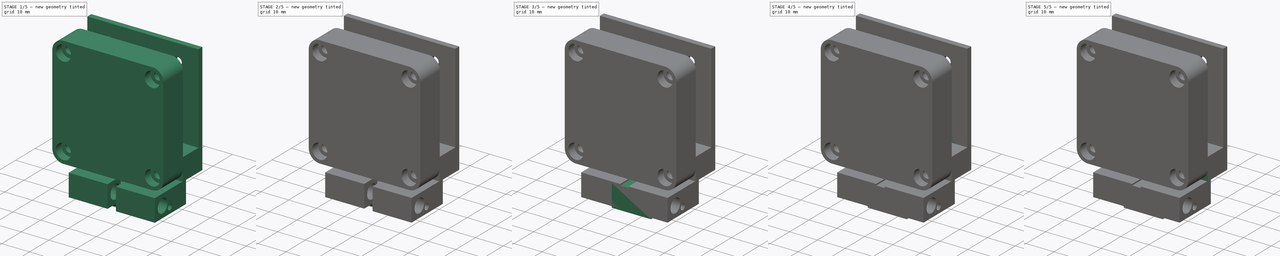
[diagram: build sequence overview — one tinted view per stage of 5, left to right]
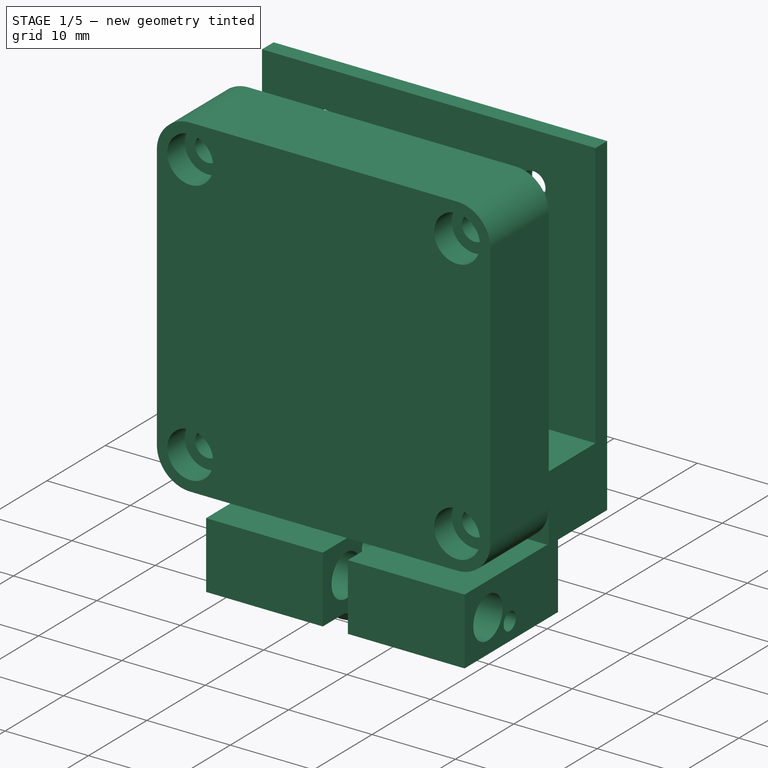
[diagram: stage 1 of 5 — iso view after this stage's code; geometry added in this stage tinted green]
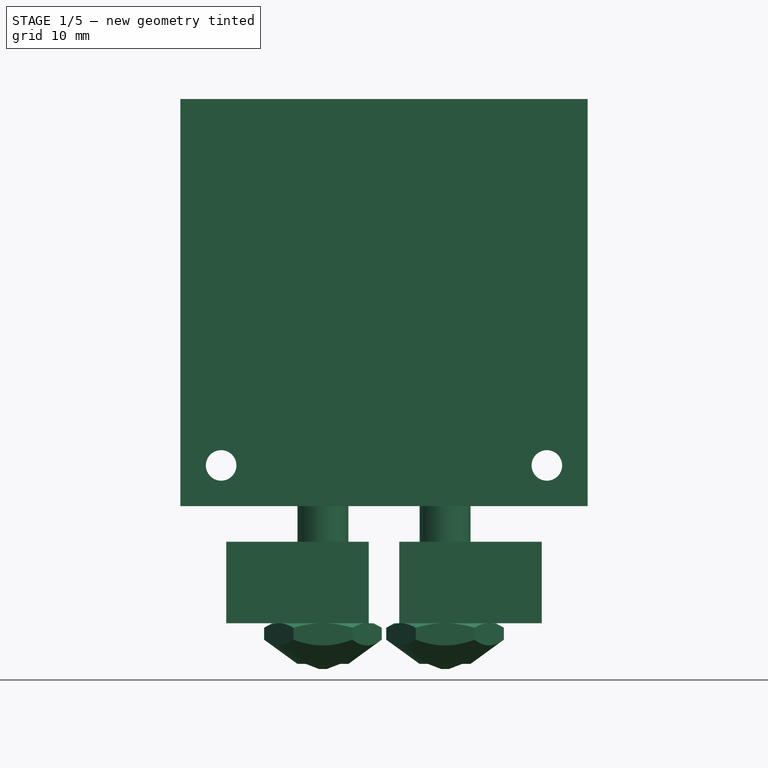
[diagram: stage 1 of 5 — front view after this stage's code; geometry added in this stage tinted green]
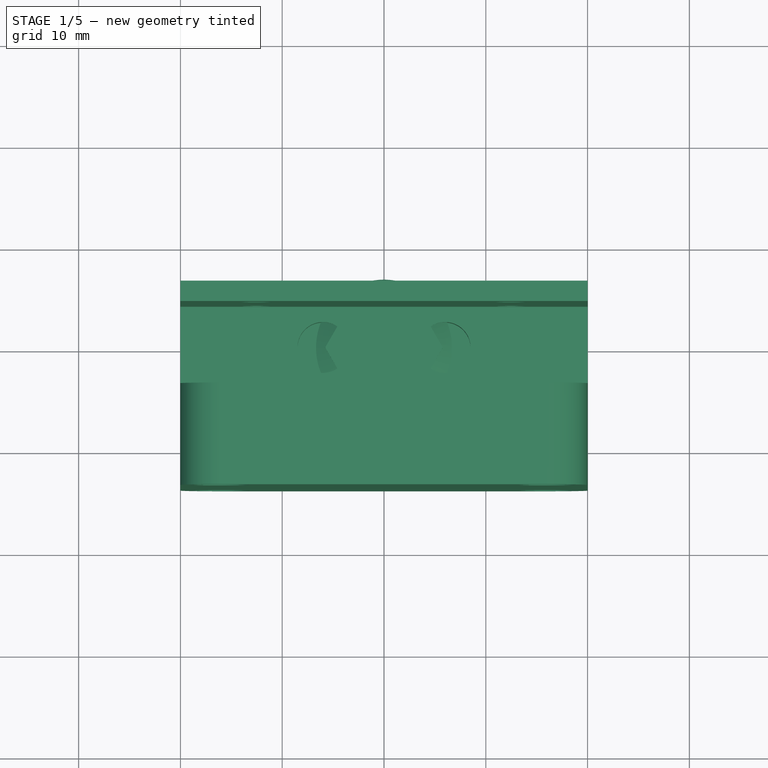
[diagram: stage 1 of 5 — top view after this stage's code; geometry added in this stage tinted green]
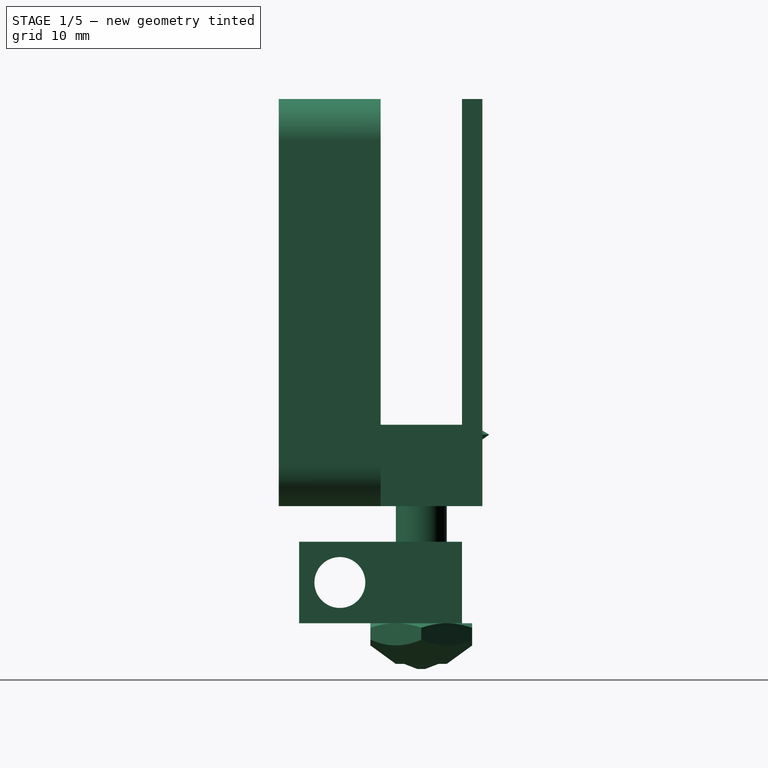
[diagram: stage 1 of 5 — right view after this stage's code; geometry added in this stage tinted green]
FCSTD DOCUMENT  (FreeCAD 0.14R3692 (Git))
Label: hotend-dual
License: CC-BY 3.0
LicenseURL: http://creativecommons.org/licenses/by/3.0/
objects: Part::Feature×9, Sketcher::SketchObject×8, PartDesign::Pocket×5, Part::Box×3, PartDesign::Revolution×2, Part::Cylinder×1, Part::Cut×1, PartDesign::Pad×1, Part::MultiCommon×1, Part::MultiFuse×1
note: 40 computed .brp shape members not serialized (recipe doc carries the construction recipe); baked Part::Feature solids carry a one-line shape summary decoded from their .brp

FEATURE [Part::Feature] Cut001  label="nozzle-right"
  Placement = pos=(6,0,-20) rot=(0,0,1;0rad)
  shape: bbox 5 x 5 x 20 mm, 4 faces (baked)
FEATURE [Sketcher::SketchObject] Sketch007  label="tapered-nut-section-sketch"
  Placement = pos=(0,0,0) rot=(1,0,0;1.5708rad)
  sketch-geometry (4):
    g0: LineSegment StartX=-2.5 StartY=0 StartZ=0 EndX=-6.67471 EndY=3.03311 EndZ=0
    g1: LineSegment StartX=-6.67471 StartY=3.03311 StartZ=0 EndX=-5 EndY=4 EndZ=0
    g2: LineSegment StartX=-5 StartY=4 StartZ=0 EndX=-2.5 EndY=4 EndZ=0
    g3: LineSegment StartX=-2.5 StartY=4 StartZ=0 EndX=-2.5 EndY=0 EndZ=0
  constraints (12):
    c: Coincident(g0,g1)
    c: Coincident(g1,g2)
    c: Coincident(g2,g3)
    c: Coincident(g3,g0)
    c: Vertical(g3)
    c: Horizontal(g2)
    c: PointOnObject(g0,g-1)
    c: DistanceX(g-1,g0) = -2.5
    c: DistanceY(g3) = -4
    c: DistanceX(g-1,g1) = -5
    c: Angle(g1) = 0.523599
    c: Angle(g-2,g0) = 0.942478
FEATURE [PartDesign::Revolution] Revolution001  label="tapered-nut-section-revolution"
  Angle = 360
  Axis = (0,0,1)
  Base = (0,0,0)
  Placement = pos=(0,0,0) rot=(1,0,0;1.5708rad)
  ReferenceAxis = -> Sketch007 [V_Axis]
  Sketch = -> Sketch007
FEATURE [Sketcher::SketchObject] Sketch008  label="tapered-nut-prism-sketch"
  sketch-geometry (7):
    g0: LineSegment StartX=-2.88675 StartY=5 StartZ=0 EndX=-5.7735 EndY=0 EndZ=0
    g1: LineSegment StartX=-5.7735 StartY=0 StartZ=0 EndX=-2.88675 EndY=-5 EndZ=0
    g2: LineSegment StartX=-2.88675 StartY=-5 StartZ=0 EndX=2.88675 EndY=-5 EndZ=0
    g3: LineSegment StartX=2.88675 StartY=-5 StartZ=0 EndX=5.7735 EndY=0 EndZ=0
    g4: LineSegment StartX=5.7735 StartY=0 StartZ=0 EndX=2.88675 EndY=5 EndZ=0
    g5: LineSegment StartX=2.88675 StartY=5 StartZ=0 EndX=-2.88675 EndY=5 EndZ=0
    g6: Circle [constr] CenterX=0 CenterY=0 CenterZ=0 NormalX=0 NormalY=0 NormalZ=1 Radius=5.7735
  constraints (20):
    c: Coincident(g0,g1)
    c: Coincident(g1,g2)
    c: Coincident(g2,g3)
    c: Coincident(g3,g4)
    c: Coincident(g4,g5)
    c: Coincident(g5,g0)
    c: Equal(g5,g2)
    c: Equal(g2,g1)
    c: Equal(g1,g3)
    c: Equal(g3,g4)
    c: Equal(g4,g0)
    c: Coincident(g6,g-1)
    c: PointOnObject(g0,g6)
    c: PointOnObject(g4,g6)
    c: PointOnObject(g3,g6)
    c: PointOnObject(g2,g6)
    c: PointOnObject(g1,g6)
    c: PointOnObject(g0,g6)
    c: Horizontal(g2)
    c: DistanceY(g1,g0) = 10
FEATURE [PartDesign::Pad] Pad  label="tapered-nut-prism-pad"
  Length = 4
  Length2 = 100
  Sketch = -> Sketch008
  Type = 0
FEATURE [Part::Feature] Common001  label="tapered-nut-right"
  Placement = pos=(6,0,-19.5) rot=(0,0,1;0rad)
  shape: bbox 11.55 x 11.55 x 4 mm, 16 faces (baked)
FEATURE [Part::Feature] Pocket001002003004  label="heater-block-left"
  Placement = pos=(-6,0,-23.5) rot=(0,1,0;3.14159rad)
  shape: bbox 14 x 16 x 8 mm, 9 faces (baked)
FEATURE [Part::Feature] Cut002  label="nozzle-left"
  Placement = pos=(-6,0,-20) rot=(0,0,1;0rad)
  shape: bbox 5 x 5 x 20 mm, 4 faces (baked)
FEATURE [Part::Feature] Common002  label="tapered-nut-left"
  Placement = pos=(-6,0,-19.5) rot=(0,0,1;0rad)
  shape: bbox 11.55 x 11.55 x 4 mm, 16 faces (baked)
FEATURE [Part::Feature] Pocket001002003005  label="heatsink"
  shape: bbox 40 x 2 x 40 mm, 12 faces (baked)
FEATURE [Part::Feature] Pocket001002003006  label="heatsink-block"
  shape: bbox 40 x 8 x 8 mm, 10 faces (baked)
FEATURE [Part::Feature] Part__Feature  label="fan-40x40x10"
  Placement = pos=(-20,-4,-4) rot=(1,0,0;1.5708rad)
  shape: bbox 40 x 10 x 40 mm, 22 faces (baked)
FEATURE [Part::MultiFuse] Fusion  label="hotend-dual"
  Shapes = -> [Pocket001002003004,Common002,Cut002,Common001,Cut001,Pocket001002003001,Pocket001002003005,Pocket001002003006,Part__Feature]
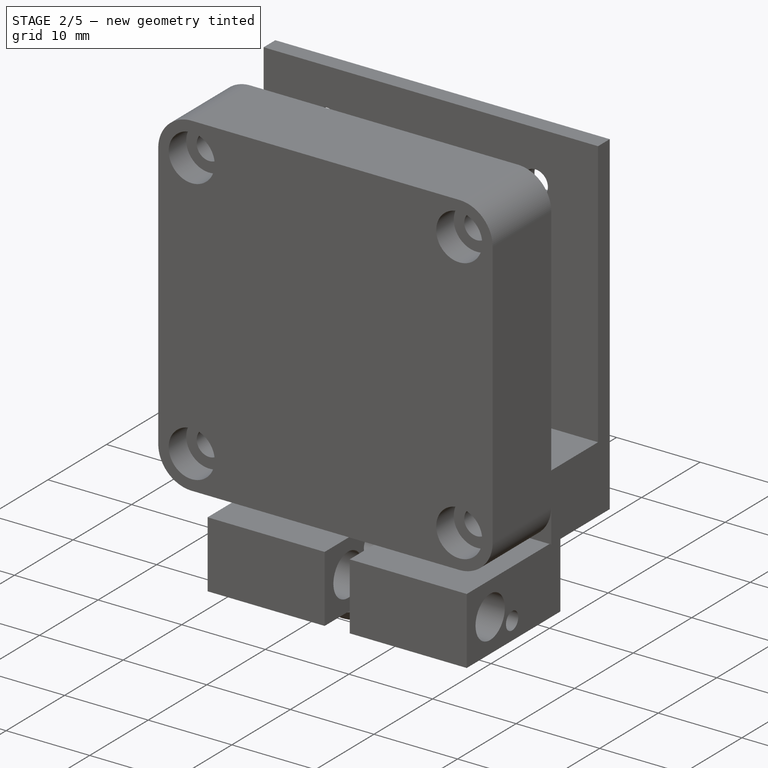
[diagram: stage 2 of 5 — iso view after this stage's code; geometry added in this stage tinted green]
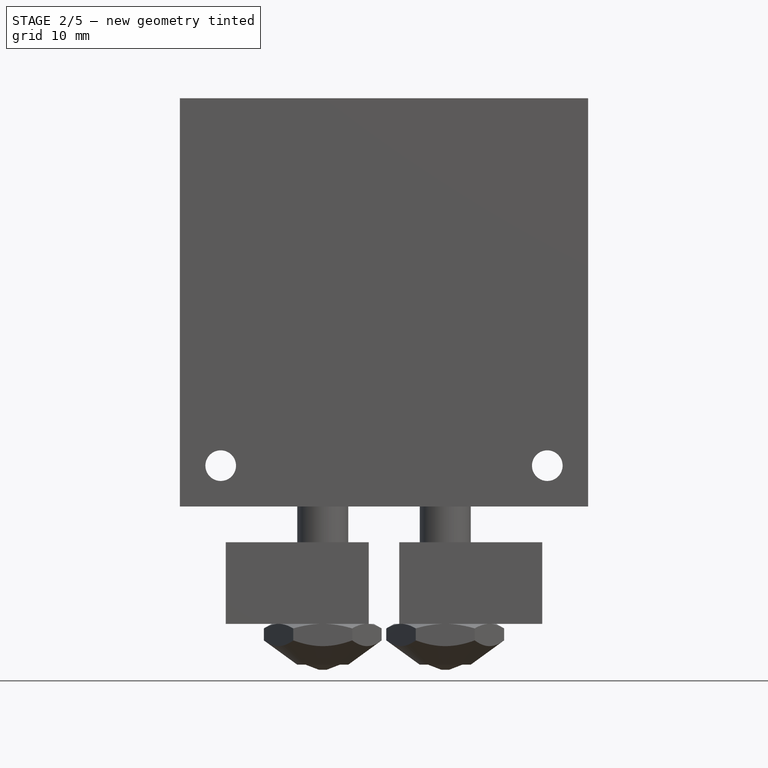
[diagram: stage 2 of 5 — front view after this stage's code; geometry added in this stage tinted green]
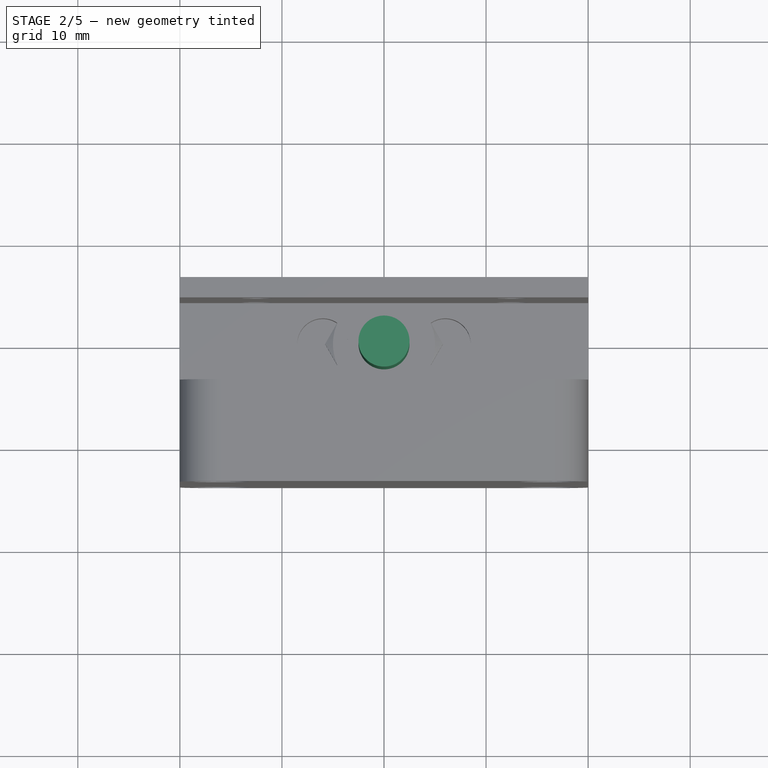
[diagram: stage 2 of 5 — top view after this stage's code; geometry added in this stage tinted green]
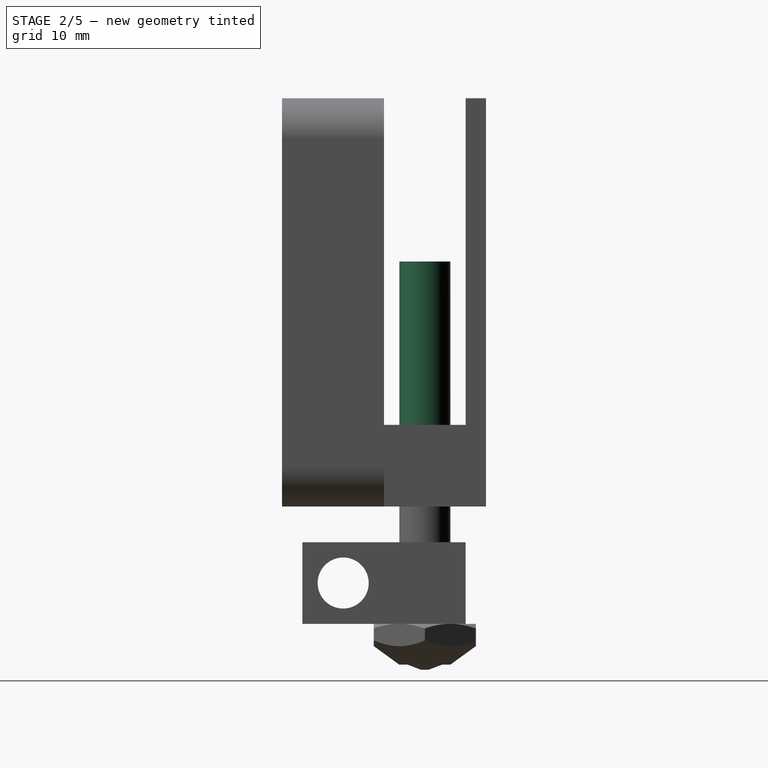
[diagram: stage 2 of 5 — right view after this stage's code; geometry added in this stage tinted green]
FEATURE [Part::Feature] Pocket001002003001  label="heater-block-right"
  Placement = pos=(6,0,0.5) rot=(0,0,1;0rad)
  shape: bbox 14 x 16 x 8 mm, 9 faces (baked)
FEATURE [Part::Cylinder] Cylinder  label="nozzle-cylinder"
  Angle = 360
  Height = 20
  Radius = 2.5
FEATURE [Sketcher::SketchObject] Sketch006  label="nozzle-sketch"
  Placement = pos=(0,0,0) rot=(1,0,0;1.5708rad)
  sketch-geometry (3):
    g0: LineSegment StartX=-0.375 StartY=0 StartZ=0 EndX=-2.5 EndY=0.815711 EndZ=0
    g1: LineSegment StartX=-2.5 StartY=0.815711 StartZ=0 EndX=-2.5 EndY=0 EndZ=0
    g2: LineSegment StartX=-2.5 StartY=0 StartZ=0 EndX=-0.375 EndY=0 EndZ=0
  constraints (9):
    c: Coincident(g0,g1)
    c: Coincident(g1,g2)
    c: Coincident(g2,g0)
    c: Horizontal(g2)
    c: Vertical(g1)
    c: Angle(g0,g2) = 0.366519
    c: DistanceX(g-1,g0) = -0.375
    c: DistanceX(g-1,g1) = -2.5
    c: PointOnObject(g0,g-1)
FEATURE [PartDesign::Revolution] Revolution  label="nozzle-revolution"
  Angle = 360
  Axis = (0,0,1)
  Base = (0,0,0)
  Placement = pos=(0,0,0) rot=(1,0,0;1.5708rad)
  ReferenceAxis = -> Sketch006 [V_Axis]
  Sketch = -> Sketch006
FEATURE [Part::MultiCommon] Common  label="tapered-nut-prism-section-common"
  Shapes = -> [Pad,Revolution001]
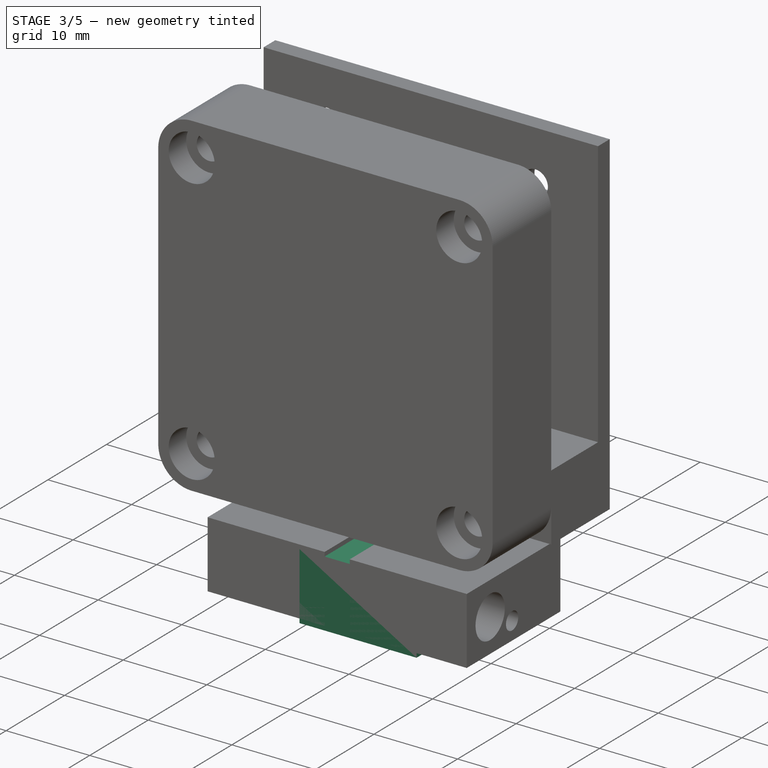
[diagram: stage 3 of 5 — iso view after this stage's code; geometry added in this stage tinted green]
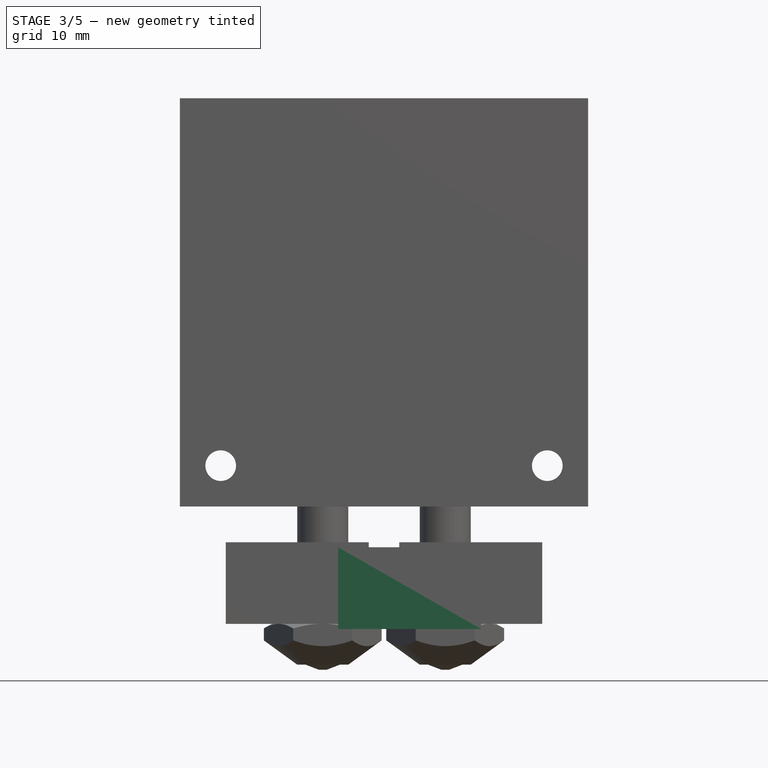
[diagram: stage 3 of 5 — front view after this stage's code; geometry added in this stage tinted green]
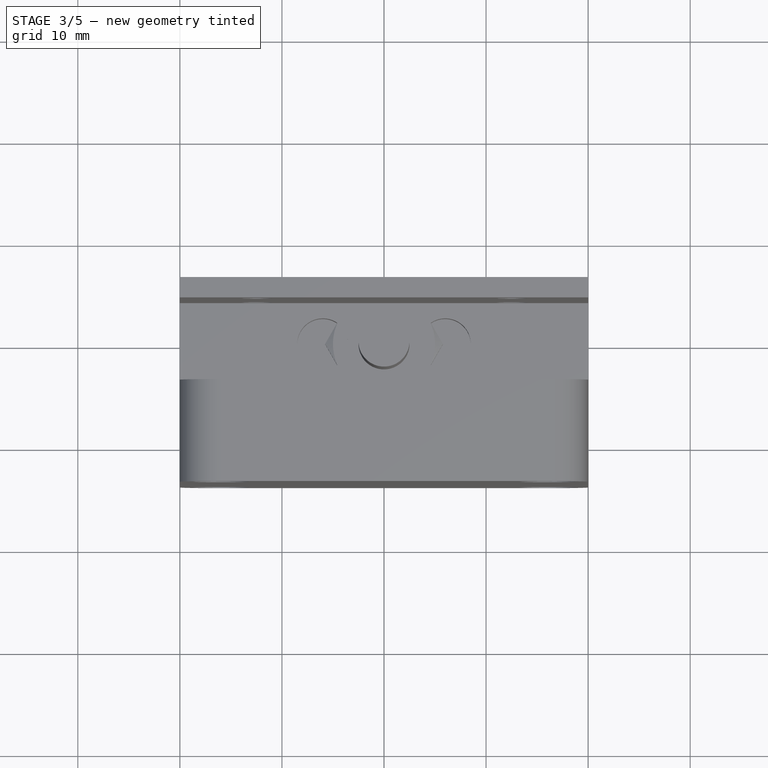
[diagram: stage 3 of 5 — top view after this stage's code; geometry added in this stage tinted green]
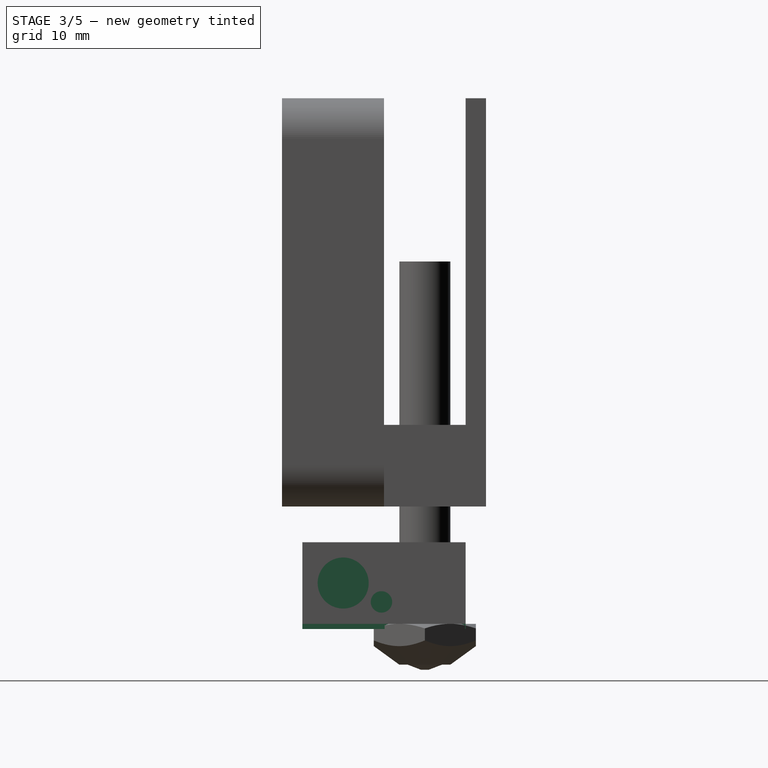
[diagram: stage 3 of 5 — right view after this stage's code; geometry added in this stage tinted green]
FEATURE [Part::Box] Box002  label="heater-block-cube"
  Height = 8
  Length = 14
  Placement = pos=(-4.5,-12,-16) rot=(0,0,1;0rad)
  Width = 16
FEATURE [Sketcher::SketchObject] Sketch003  label="heater-block-barrel-hole-sketch"
  Placement = pos=(-4.5,-12,-8) rot=(0,0,1;0rad)
  Support = -> Box002 [Face6]
  sketch-geometry (1):
    g0: Circle CenterX=4.5 CenterY=12 CenterZ=0 NormalX=0 NormalY=0 NormalZ=1 Radius=2.5
  constraints (3):
    c: DistanceY(g-1,g0) = 12
    c: DistanceX(g-1,g0) = 4.5
    c: Radius(g0) = 2.5
FEATURE [PartDesign::Pocket] Pocket001002002  label="heater-block-barrel-hole-pocket"
  Length = 8
  Placement = pos=(-4.5,-12,-16) rot=(0,0,1;0rad)
  Sketch = -> Sketch003
  Type = 0
FEATURE [Part::Cut] Cut  label="nozzle-cut"
  Base = -> Cylinder
  Tool = -> Revolution
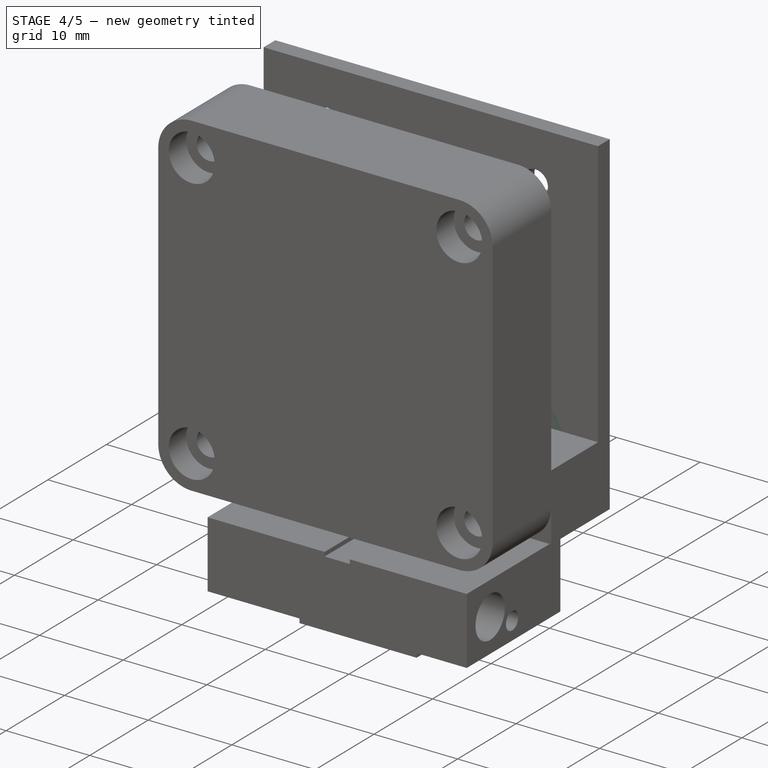
[diagram: stage 4 of 5 — iso view after this stage's code; geometry added in this stage tinted green]
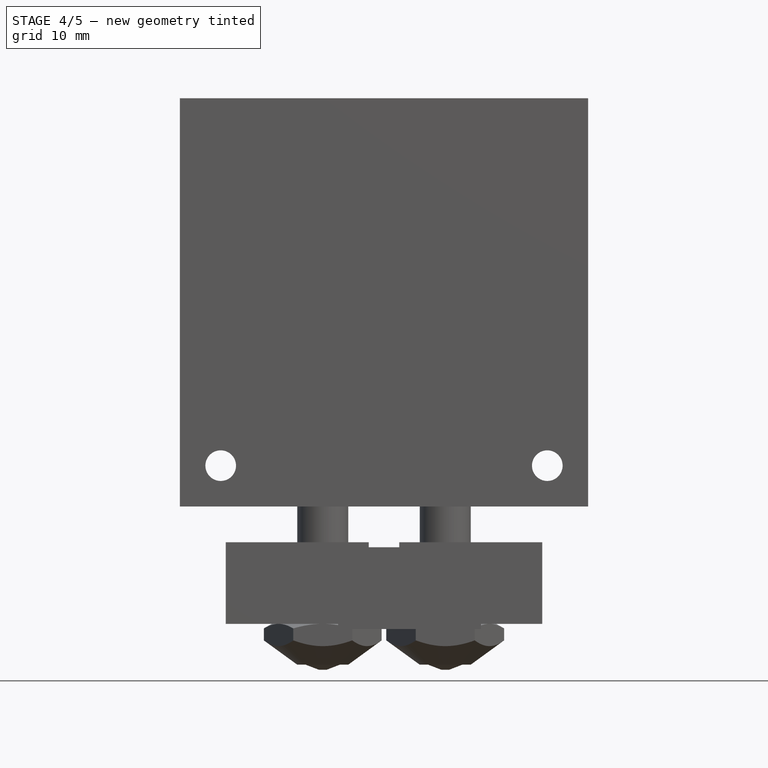
[diagram: stage 4 of 5 — front view after this stage's code; geometry added in this stage tinted green]
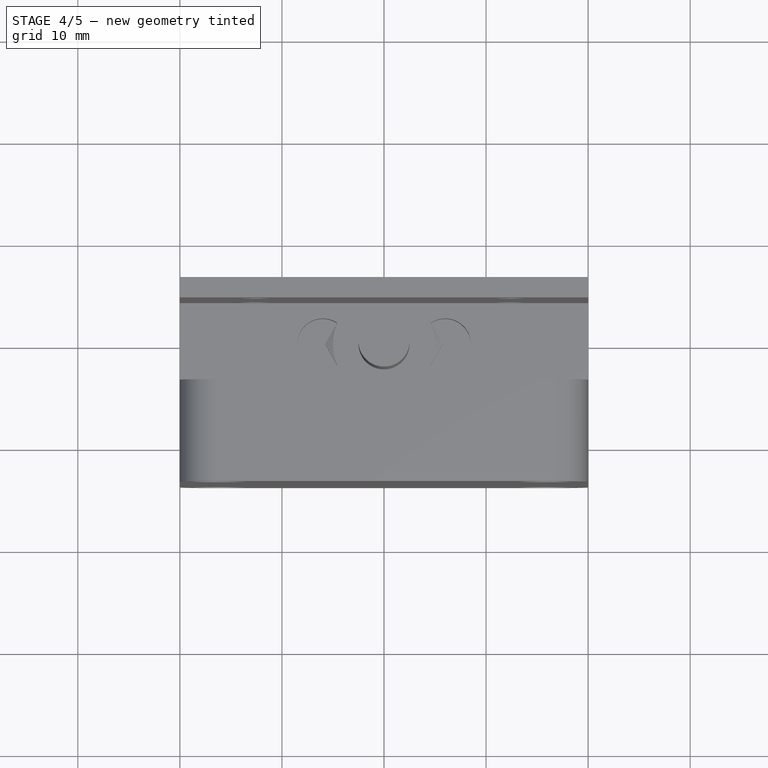
[diagram: stage 4 of 5 — top view after this stage's code; geometry added in this stage tinted green]
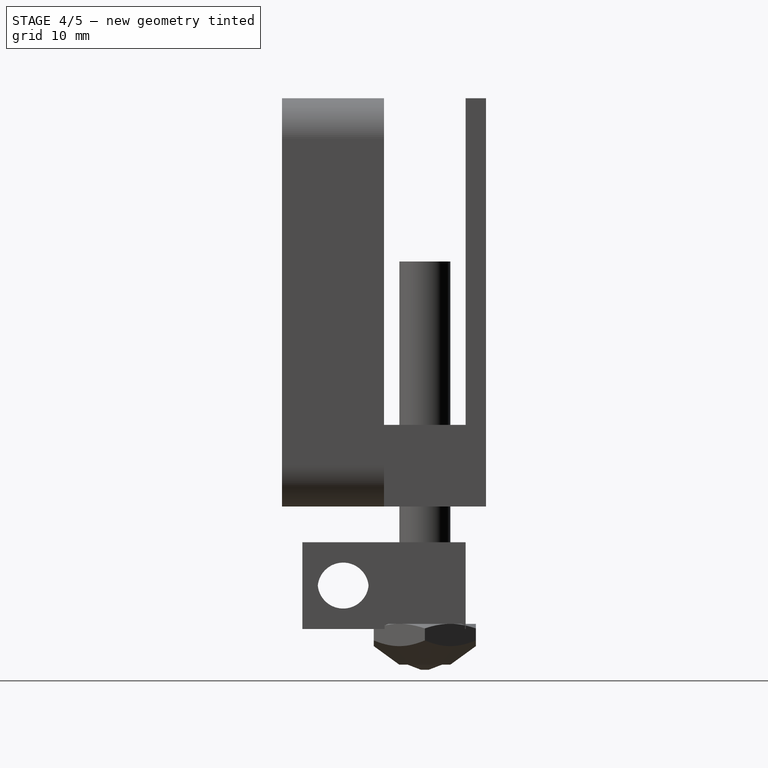
[diagram: stage 4 of 5 — right view after this stage's code; geometry added in this stage tinted green]
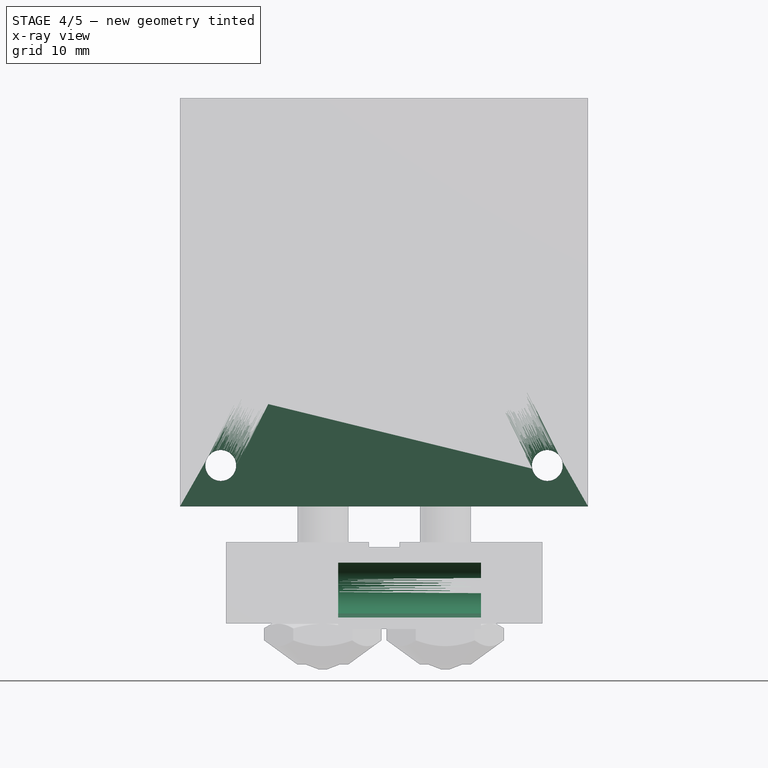
[diagram: stage 4 of 5 — x-ray composite at the front view; earlier geometry ghosted, this stage's added geometry solid]
FEATURE [Part::Box] Box001  label="heatsink-cube"
  Height = 40
  Length = 40
  Placement = pos=(-20,4,-4) rot=(0,0,1;0rad)
  Width = 2
FEATURE [Sketcher::SketchObject] Sketch002  label="heatsink-mounting-holes-sketch"
  Placement = pos=(-20,4,-4) rot=(1,0,0;1.5708rad)
  Support = -> Box001 [Face3]
  sketch-geometry (10):
    g0: Circle CenterX=4 CenterY=4 CenterZ=0 NormalX=0 NormalY=0 NormalZ=1 Radius=1.5
    g1: Circle CenterX=36 CenterY=4 CenterZ=0 NormalX=0 NormalY=0 NormalZ=1 Radius=1.5
    g2: Circle CenterX=7.5 CenterY=34 CenterZ=0 NormalX=0 NormalY=0 NormalZ=1 Radius=1.5
    g3: Circle CenterX=7.5 CenterY=11 CenterZ=0 NormalX=0 NormalY=0 NormalZ=1 Radius=1.5
    g4: Circle CenterX=32.5 CenterY=34 CenterZ=0 NormalX=0 NormalY=0 NormalZ=1 Radius=1.5
    g5: Circle CenterX=32.5 CenterY=11 CenterZ=0 NormalX=0 NormalY=0 NormalZ=1 Radius=1.5
    g6: LineSegment [constr] StartX=7.5 StartY=34 StartZ=0 EndX=32.5 EndY=34 EndZ=0
    g7: LineSegment [constr] StartX=32.5 StartY=34 StartZ=0 EndX=32.5 EndY=11 EndZ=0
    g8: LineSegment [constr] StartX=32.5 StartY=11 StartZ=0 EndX=7.5 EndY=11 EndZ=0
    g9: LineSegment [constr] StartX=7.5 StartY=11 StartZ=0 EndX=7.5 EndY=34 EndZ=0
  constraints (26):
    c: Radius(g0) = 1.5
    c: Radius(g1) = 1.5
    c: Radius(g3) = 1.5
    c: Radius(g5) = 1.5
    c: Radius(g2) = 1.5
    c: Radius(g4) = 1.5
    c: DistanceY(g-1,g0) = 4
    c: DistanceY(g-1,g1) = 4
    c: DistanceX(g-1,g0) = 4
    c: DistanceX(g1,g0) = -32
    c: Coincident(g6,g7)
    c: Coincident(g7,g8)
    c: Coincident(g8,g9)
    c: Coincident(g9,g6)
    c: Horizontal(g6)
    c: Horizontal(g8)
    c: Vertical(g7)
    c: Vertical(g9)
    c: DistanceX(g8) = -25
    c: DistanceY(g7) = -23
    c: DistanceX(g-1,g6) = 7.5
    c: DistanceY(g-1,g6) = 34
    c: Coincident(g3,g8)
    c: Coincident(g2,g6)
    c: Coincident(g4,g6)
    c: Coincident(g5,g7)
FEATURE [PartDesign::Pocket] Pocket001002  label="heatsink-mounting-holes-pocket"
  Length = 2
  Placement = pos=(-20,4,-4) rot=(0,0,1;0rad)
  Sketch = -> Sketch002
  Type = 0
FEATURE [Sketcher::SketchObject] Sketch004  label="heater-block-holes-sketch"
  Placement = pos=(9.5,-12,-16) rot=(0.57735,0.57735,0.57735;2.0944rad)
  Support = -> Pocket001002002 [Face6]
  sketch-geometry (2):
    g0: Circle CenterX=4 CenterY=4 CenterZ=0 NormalX=0 NormalY=0 NormalZ=1 Radius=2.5
    g1: Circle CenterX=7.75 CenterY=2.15 CenterZ=0 NormalX=0 NormalY=0 NormalZ=1 Radius=1.05
  constraints (6):
    c: DistanceX(g-1,g0) = 4
    c: DistanceY(g-1,g0) = 4
    c: Radius(g0) = 2.5
    c: Radius(g1) = 1.05
    c: DistanceX(g-1,g1) = 7.75
    c: DistanceY(g-1,g1) = 2.15
FEATURE [PartDesign::Pocket] Pocket001002003  label="heater-block-holes-pocket"
  Length = 14
  Placement = pos=(-4.5,-12,-16) rot=(0,0,1;0rad)
  Sketch = -> Sketch004
  Type = 0
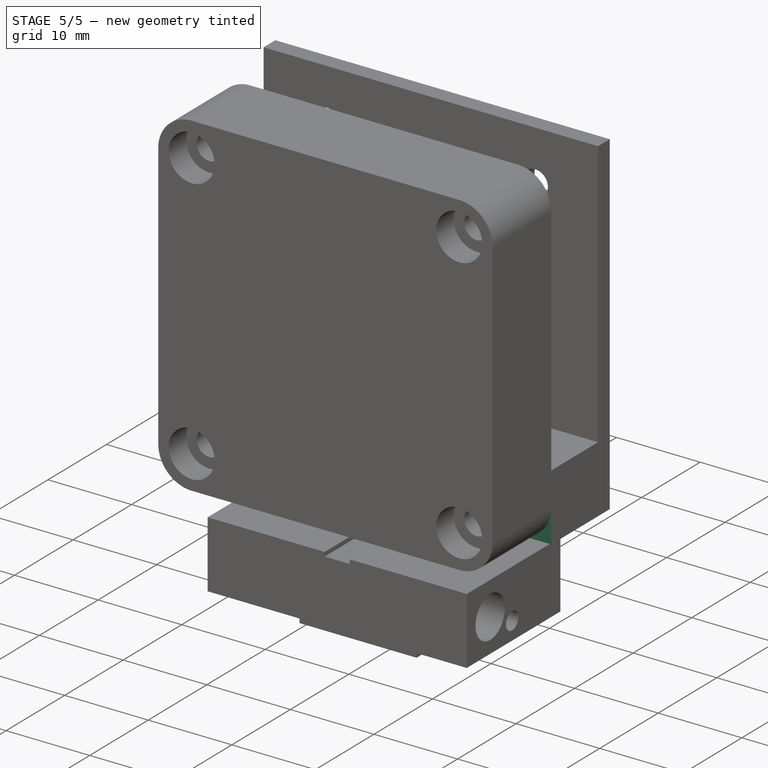
[diagram: stage 5 of 5 — iso view after this stage's code; geometry added in this stage tinted green]
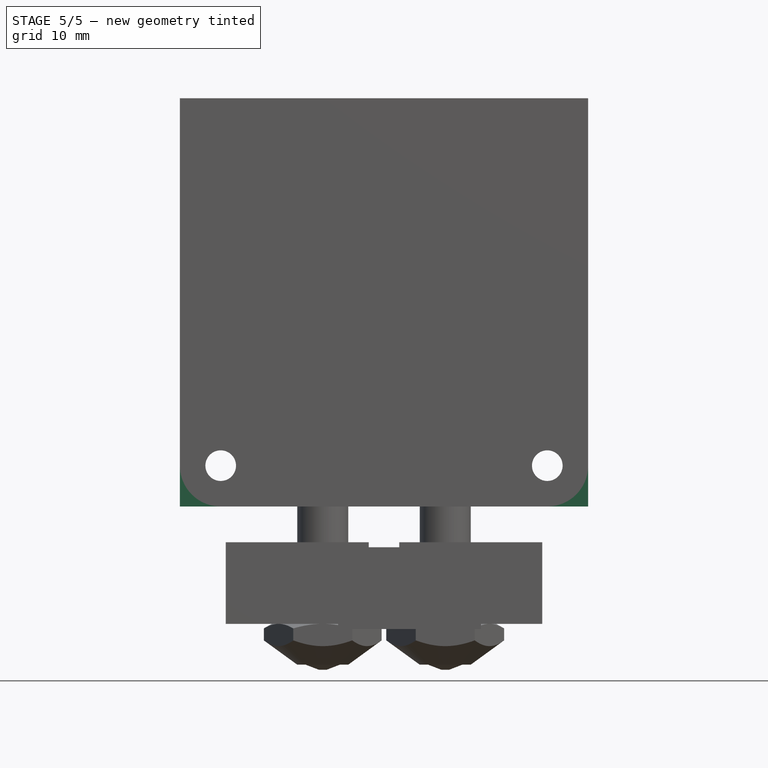
[diagram: stage 5 of 5 — front view after this stage's code; geometry added in this stage tinted green]
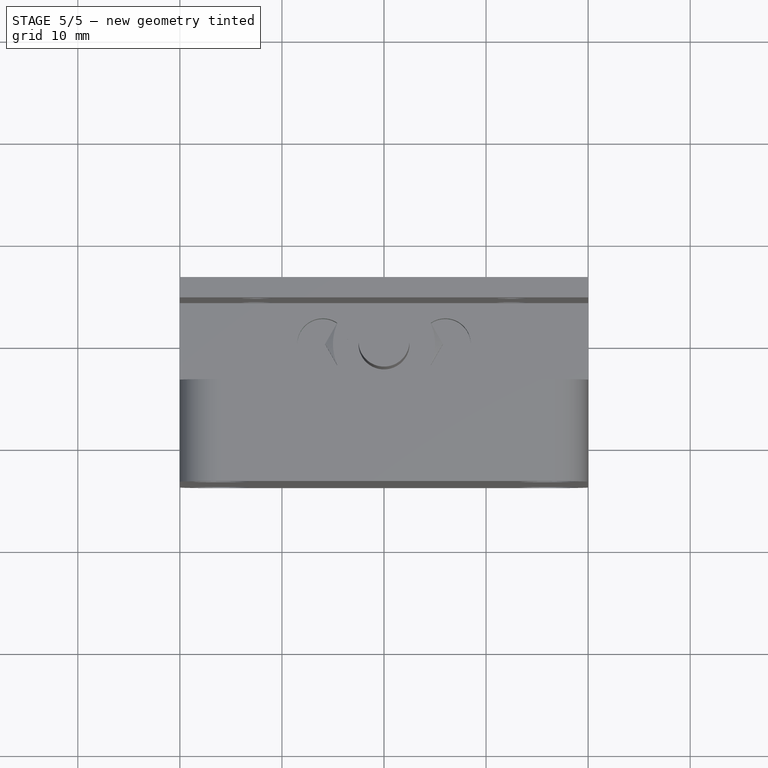
[diagram: stage 5 of 5 — top view after this stage's code; geometry added in this stage tinted green]
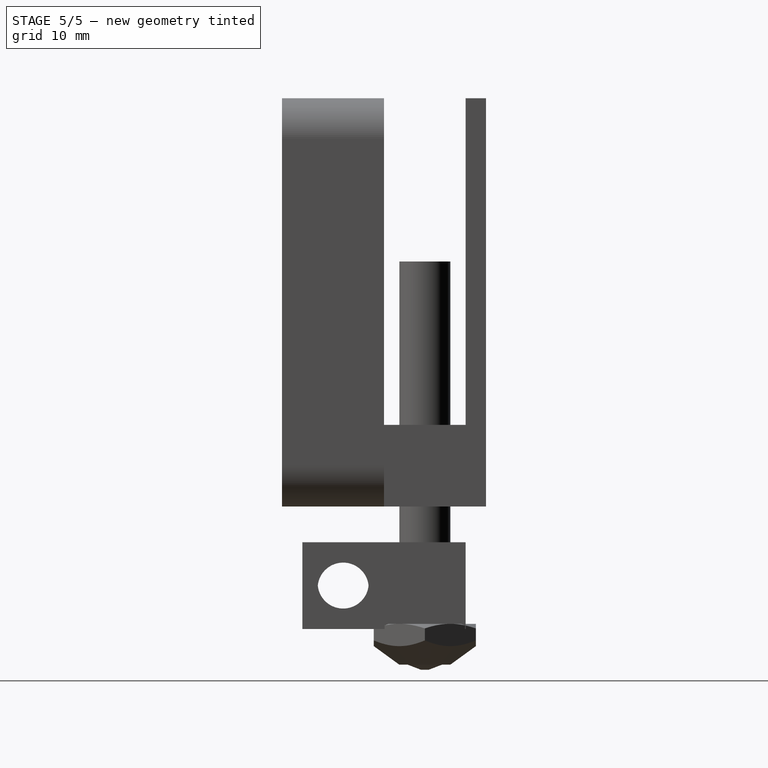
[diagram: stage 5 of 5 — right view after this stage's code; geometry added in this stage tinted green]
FEATURE [Part::Box] Box  label="heatsink-block-cube"
  Height = 8
  Length = 40
  Placement = pos=(-20,-4,-4) rot=(0,0,1;0rad)
  Width = 8
FEATURE [Sketcher::SketchObject] Sketch  label="heatsink-block-barrel-hole-sketch"
  Placement = pos=(-20,-4,4) rot=(0,0,1;0rad)
  Support = -> Box [Face6]
  sketch-geometry (2):
    g0: Circle CenterX=26 CenterY=4 CenterZ=0 NormalX=0 NormalY=0 NormalZ=1 Radius=2.5
    g1: Circle CenterX=14 CenterY=4 CenterZ=0 NormalX=0 NormalY=0 NormalZ=1 Radius=2.5
  constraints (6):
    c: DistanceX(g-1,g0) = 26
    c: DistanceY(g-1,g0) = 4
    c: Radius(g0) = 2.5
    c: Equal(g1,g0)
    c: DistanceY(g-1,g1) = 4
    c: DistanceX(g-1,g1) = 14
FEATURE [PartDesign::Pocket] Pocket  label="heatsink-block-barrel-hole-pocket"
  Length = 8
  Placement = pos=(-20,-4,-4) rot=(0,0,1;0rad)
  Sketch = -> Sketch
  Type = 0
FEATURE [Sketcher::SketchObject] Sketch001  label="heatsink-block-mounting-holes-sketch"
  Placement = pos=(-20,-4,-4) rot=(1,0,0;1.5708rad)
  Support = -> Pocket [Face2]
  sketch-geometry (2):
    g0: Circle CenterX=4 CenterY=4 CenterZ=0 NormalX=0 NormalY=0 NormalZ=1 Radius=1.5
    g1: Circle CenterX=36 CenterY=4 CenterZ=0 NormalX=0 NormalY=0 NormalZ=1 Radius=1.5
  constraints (6):
    c: Radius(g0) = 1.5
    c: DistanceY(g-1,g0) = 4
    c: DistanceX(g-1,g1) = 36
    c: DistanceY(g-1,g1) = 4
    c: DistanceX(g-1,g0) = 4
    c: Radius(g1) = 1.5
FEATURE [PartDesign::Pocket] Pocket001  label="heatsink-block-mounting-holes-pocket"
  Length = 8
  Placement = pos=(-20,-4,-4) rot=(0,0,1;0rad)
  Sketch = -> Sketch001
  Type = 0
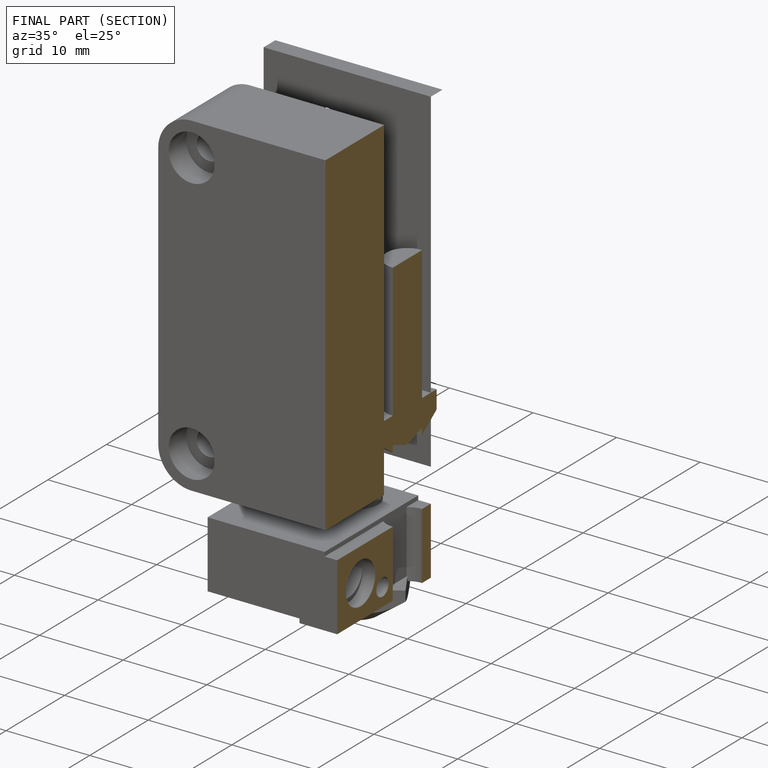
[diagram: finished part — half-section view (interior)]
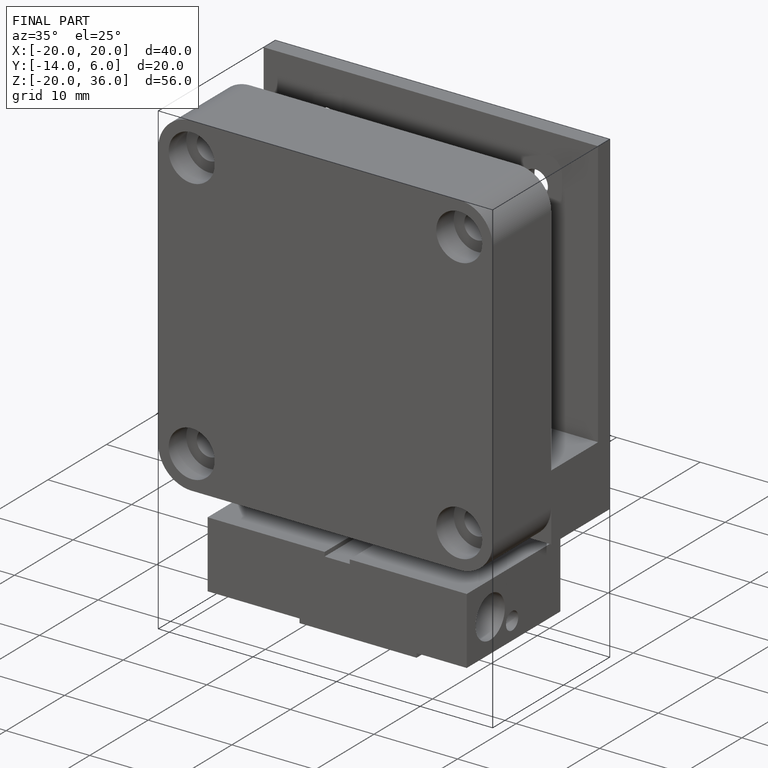
[diagram: finished part — iso view with bounding-box wireframe]
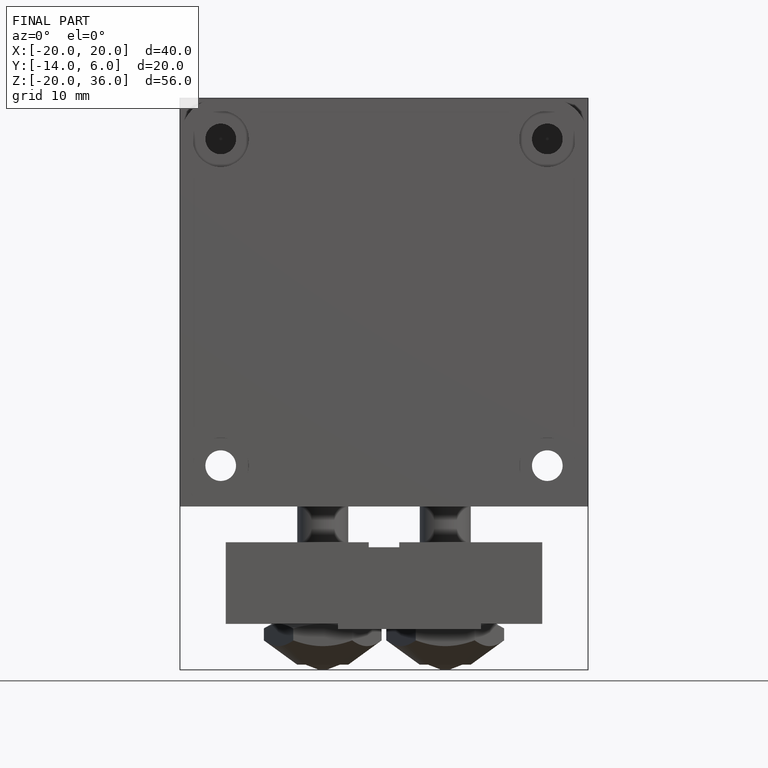
[diagram: finished part — front view with bounding-box wireframe]
